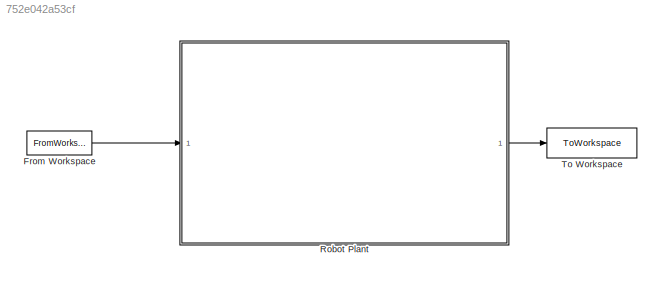
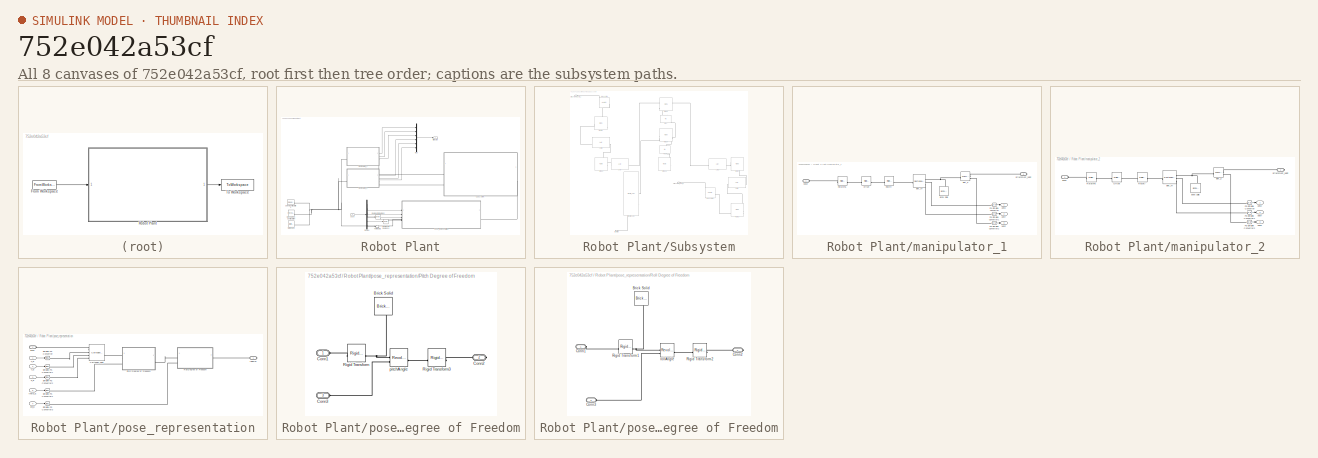
[diagram: thumbnail index - all 8 canvases of the model, root first then tree order]
MODEL slx_752e042a53cf
KIND model
CONFIG AbsTol = auto
CONFIG EnableMultiTasking = off
CONFIG FixedStep = 1e-4
CONFIG MaxStep = auto
CONFIG MinStep = auto
CONFIG RelTol = 1e-3
CONFIG SampleTimeConstraint = Unconstrained
CONFIG SolverName = VariableStepAuto
CONFIG StartTime = 0.0
CONFIG StopTime = 10
BLOCK [FromWorkspace] From Workspace
  VariableName = pose
BLOCK [SubSystem] Robot Plant
  TreatAsAtomicUnit = on
BLOCK [Reference] Robot Plant/Degrees to Radians  REF=simulink_extras/Transformations/Degrees to
Radians
  SourceBlock = simulink_extras/Transformations/Degrees to\nRadians
  SourceType = DegreesToRadians
BLOCK [Reference] Robot Plant/Degrees to Radians1  REF=simulink_extras/Transformations/Degrees to
Radians
  SourceBlock = simulink_extras/Transformations/Degrees to\nRadians
  SourceType = DegreesToRadians
BLOCK [Demux] Robot Plant/Demux
  Outputs = 6
BLOCK [Reference] Robot Plant/Mechanism Configuration  REF=sm_lib/Utilities/Mechanism
Configuration
  SourceBlock = sm_lib/Utilities/Mechanism\nConfiguration
  SourceType = Mechanism\nConfiguration
BLOCK [Mux] Robot Plant/Mux
  DisplayOption = bar
  Inputs = 6
BLOCK [Reference] Robot Plant/Solver Configuration  REF=nesl_utility/Solver
Configuration
  SourceBlock = nesl_utility/Solver\nConfiguration
  SourceType = Solver\nConfiguration
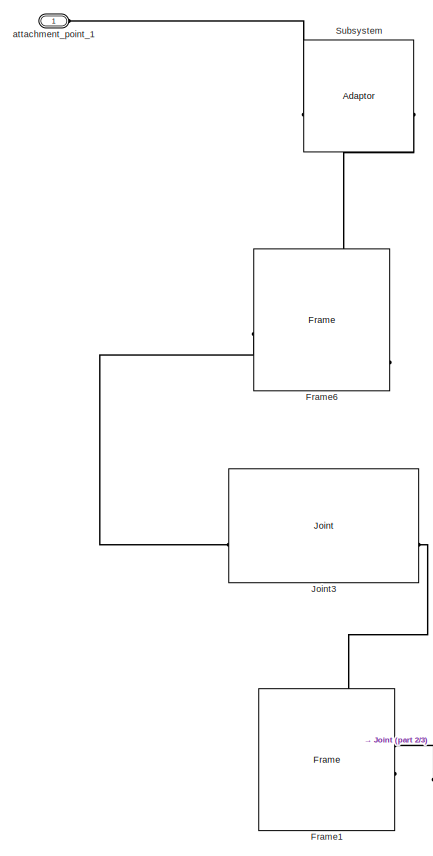
[diagram: Robot Plant/Subsystem - part 1/3, top left region]
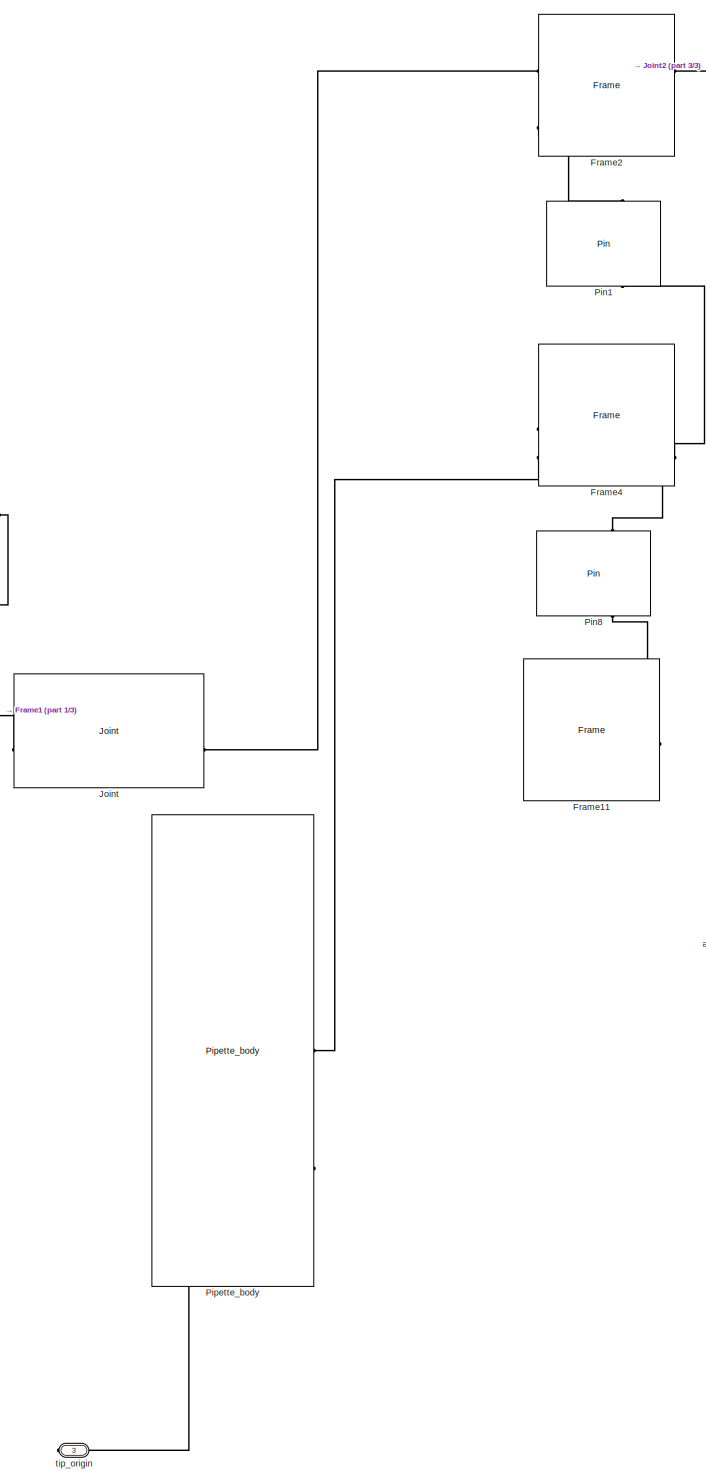
[diagram: Robot Plant/Subsystem - part 2/3, center side, full height]
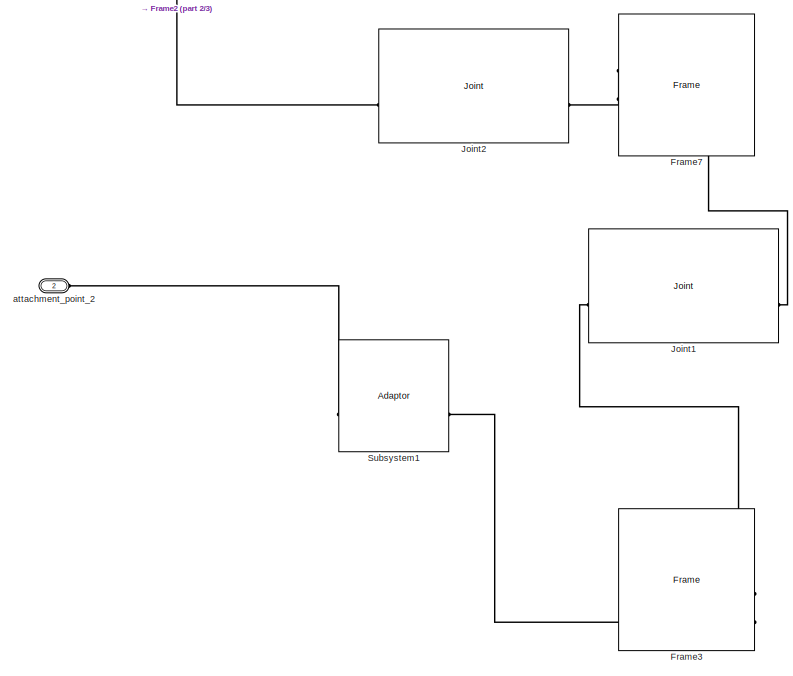
[diagram: Robot Plant/Subsystem - part 3/3, bottom right region]
BLOCK [SubSystem] Robot Plant/Subsystem
BLOCK [Reference] Robot Plant/Subsystem/Frame1  REF=mrex_hypercube_modules/Frame  (lib defined in slx_b86d9e98f719)
  SourceBlock = mrex_hypercube_modules/Frame
BLOCK [Reference] Robot Plant/Subsystem/Frame11  REF=mrex_hypercube_modules/Frame  (lib defined in slx_b86d9e98f719)
  SourceBlock = mrex_hypercube_modules/Frame
BLOCK [Reference] Robot Plant/Subsystem/Frame2  REF=mrex_hypercube_modules/Frame  (lib defined in slx_b86d9e98f719)
  SourceBlock = mrex_hypercube_modules/Frame
BLOCK [Reference] Robot Plant/Subsystem/Frame3  REF=mrex_hypercube_modules/Frame  (lib defined in slx_b86d9e98f719)
  SourceBlock = mrex_hypercube_modules/Frame
BLOCK [Reference] Robot Plant/Subsystem/Frame4  REF=mrex_hypercube_modules/Frame  (lib defined in slx_b86d9e98f719)
  SourceBlock = mrex_hypercube_modules/Frame
BLOCK [Reference] Robot Plant/Subsystem/Frame6  REF=mrex_hypercube_modules/Frame  (lib defined in slx_b86d9e98f719)
  SourceBlock = mrex_hypercube_modules/Frame
BLOCK [Reference] Robot Plant/Subsystem/Frame7  REF=mrex_hypercube_modules/Frame  (lib defined in slx_b86d9e98f719)
  SourceBlock = mrex_hypercube_modules/Frame
BLOCK [Reference] Robot Plant/Subsystem/Joint  REF=mrex_hypercube_modules/Joint  (lib defined in slx_b86d9e98f719)
  SourceBlock = mrex_hypercube_modules/Joint
BLOCK [Reference] Robot Plant/Subsystem/Joint1  REF=mrex_hypercube_modules/Joint  (lib defined in slx_b86d9e98f719)
  SourceBlock = mrex_hypercube_modules/Joint
BLOCK [Reference] Robot Plant/Subsystem/Joint2  REF=mrex_hypercube_modules/Joint  (lib defined in slx_b86d9e98f719)
  SourceBlock = mrex_hypercube_modules/Joint
BLOCK [Reference] Robot Plant/Subsystem/Joint3  REF=mrex_hypercube_modules/Joint  (lib defined in slx_b86d9e98f719)
  SourceBlock = mrex_hypercube_modules/Joint
BLOCK [Reference] Robot Plant/Subsystem/Pin1  REF=mrex_hypercube_modules/Pin  (lib defined in slx_b86d9e98f719)
  NameLocation = right
  SourceBlock = mrex_hypercube_modules/Pin
BLOCK [Reference] Robot Plant/Subsystem/Pin8  REF=mrex_hypercube_modules/Pin  (lib defined in slx_b86d9e98f719)
  NameLocation = right
  SourceBlock = mrex_hypercube_modules/Pin
BLOCK [Reference] Robot Plant/Subsystem/Pipette_body  REF=mrex_hypercube_modules/Pipette_body  (lib defined in slx_b86d9e98f719)
  SourceBlock = mrex_hypercube_modules/Pipette_body
BLOCK [Reference] Robot Plant/Subsystem/Subsystem  REF=mrex_hypercube_modules/Adaptor  (lib defined in slx_b86d9e98f719)
  SourceBlock = mrex_hypercube_modules/Adaptor
  SourceType = SubSystem
BLOCK [Reference] Robot Plant/Subsystem/Subsystem1  REF=mrex_hypercube_modules/Adaptor  (lib defined in slx_b86d9e98f719)
  SourceBlock = mrex_hypercube_modules/Adaptor
  SourceType = SubSystem
BLOCK [PMIOPort] Robot Plant/Subsystem/attachment_point_1
  Side = Left
BLOCK [PMIOPort] Robot Plant/Subsystem/attachment_point_2
  Port = 2
  Side = Left
BLOCK [PMIOPort] Robot Plant/Subsystem/tip_origin
  Port = 3
  Side = Right
BLOCK [Terminator] Robot Plant/Terminator1
BLOCK [Reference] Robot Plant/World Frame  REF=sm_lib/Frames and
Transforms/World Frame
  SourceBlock = sm_lib/Frames and\nTransforms/World Frame
  SourceType = World Frame
BLOCK [SubSystem] Robot Plant/manipulator_1
BLOCK [Reference] Robot Plant/manipulator_1/Brick Solid  REF=sm_lib/Body Elements/Brick Solid
  NameLocation = right
  SourceBlock = sm_lib/Body Elements/Brick Solid
  SourceType = Brick Solid
BLOCK [Reference] Robot Plant/manipulator_1/PS-Simulink Converter  REF=nesl_utility/PS-Simulink
Converter
  SourceBlock = nesl_utility/PS-Simulink\nConverter
  SourceType = PS-Simulink\nConverter
BLOCK [Reference] Robot Plant/manipulator_1/PS-Simulink Converter1  REF=nesl_utility/PS-Simulink
Converter
  SourceBlock = nesl_utility/PS-Simulink\nConverter
  SourceType = PS-Simulink\nConverter
BLOCK [Reference] Robot Plant/manipulator_1/PS-Simulink Converter2  REF=nesl_utility/PS-Simulink
Converter
  SourceBlock = nesl_utility/PS-Simulink\nConverter
  SourceType = PS-Simulink\nConverter
BLOCK [Reference] Robot Plant/manipulator_1/Rectify  REF=sm_lib/Frames and
Transforms/Rigid
Transform
  SourceBlock = sm_lib/Frames and\nTransforms/Rigid\nTransform
  SourceType = Rigid\nTransform
BLOCK [Reference] Robot Plant/manipulator_1/Rotate45  REF=sm_lib/Frames and
Transforms/Rigid
Transform
  SourceBlock = sm_lib/Frames and\nTransforms/Rigid\nTransform
  SourceType = Rigid\nTransform
BLOCK [PMIOPort] Robot Plant/manipulator_1/attachment_point
  Port = 2
  Side = Right
BLOCK [Outport] Robot Plant/manipulator_1/axisX
BLOCK [Outport] Robot Plant/manipulator_1/axisY
  Port = 2
BLOCK [Outport] Robot Plant/manipulator_1/axisZ
  Port = 3
BLOCK [PMIOPort] Robot Plant/manipulator_1/base
  Side = Left
BLOCK [Reference] Robot Plant/manipulator_1/joint_XY  REF=sm_lib/Joints/Rectangular
Joint
  SourceBlock = sm_lib/Joints/Rectangular\nJoint
  SourceType = Rectangular\nJoint
BLOCK [Reference] Robot Plant/manipulator_1/joint_Z  REF=sm_lib/Joints/Prismatic
Joint
  SourceBlock = sm_lib/Joints/Prismatic\nJoint
  SourceType = Prismatic\nJoint
BLOCK [Reference] Robot Plant/manipulator_1/offset  REF=sm_lib/Frames and
Transforms/Rigid
Transform
  SourceBlock = sm_lib/Frames and\nTransforms/Rigid\nTransform
  SourceType = Rigid\nTransform
BLOCK [SubSystem] Robot Plant/manipulator_2
BLOCK [Reference] Robot Plant/manipulator_2/Brick Solid  REF=sm_lib/Body Elements/Brick Solid
  NameLocation = right
  SourceBlock = sm_lib/Body Elements/Brick Solid
  SourceType = Brick Solid
BLOCK [Reference] Robot Plant/manipulator_2/Offset  REF=sm_lib/Frames and
Transforms/Rigid
Transform
  SourceBlock = sm_lib/Frames and\nTransforms/Rigid\nTransform
  SourceType = Rigid\nTransform
BLOCK [Reference] Robot Plant/manipulator_2/PS-Simulink Converter  REF=nesl_utility/PS-Simulink
Converter
  SourceBlock = nesl_utility/PS-Simulink\nConverter
  SourceType = PS-Simulink\nConverter
BLOCK [Reference] Robot Plant/manipulator_2/PS-Simulink Converter1  REF=nesl_utility/PS-Simulink
Converter
  SourceBlock = nesl_utility/PS-Simulink\nConverter
  SourceType = PS-Simulink\nConverter
BLOCK [Reference] Robot Plant/manipulator_2/PS-Simulink Converter2  REF=nesl_utility/PS-Simulink
Converter
  SourceBlock = nesl_utility/PS-Simulink\nConverter
  SourceType = PS-Simulink\nConverter
BLOCK [Reference] Robot Plant/manipulator_2/Rectify  REF=sm_lib/Frames and
Transforms/Rigid
Transform
  SourceBlock = sm_lib/Frames and\nTransforms/Rigid\nTransform
  SourceType = Rigid\nTransform
BLOCK [Reference] Robot Plant/manipulator_2/Rotate45  REF=sm_lib/Frames and
Transforms/Rigid
Transform
  SourceBlock = sm_lib/Frames and\nTransforms/Rigid\nTransform
  SourceType = Rigid\nTransform
BLOCK [PMIOPort] Robot Plant/manipulator_2/attachment_point
  Port = 2
  Side = Right
BLOCK [Outport] Robot Plant/manipulator_2/axisX
BLOCK [Outport] Robot Plant/manipulator_2/axisY
  Port = 2
BLOCK [Outport] Robot Plant/manipulator_2/axisZ
  Port = 3
BLOCK [PMIOPort] Robot Plant/manipulator_2/base
  Side = Left
BLOCK [Reference] Robot Plant/manipulator_2/joint_XY  REF=sm_lib/Joints/Rectangular
Joint
  SourceBlock = sm_lib/Joints/Rectangular\nJoint
  SourceType = Rectangular\nJoint
BLOCK [Reference] Robot Plant/manipulator_2/joint_Z  REF=sm_lib/Joints/Prismatic
Joint
  SourceBlock = sm_lib/Joints/Prismatic\nJoint
  SourceType = Prismatic\nJoint
BLOCK [Inport] Robot Plant/pose
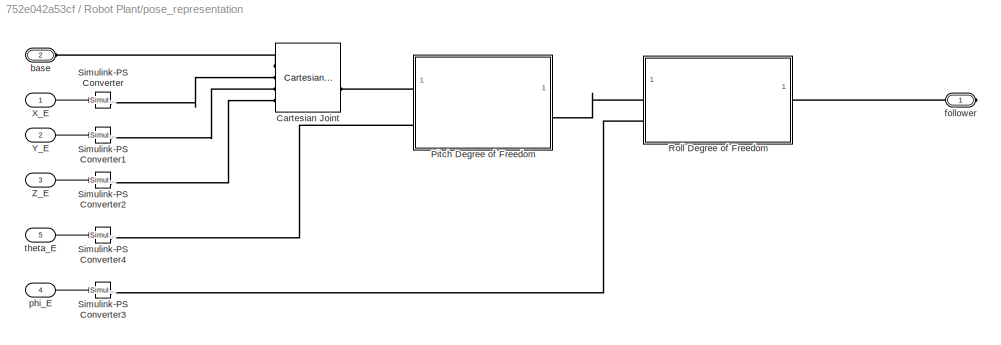
BLOCK [SubSystem] Robot Plant/pose_representation
BLOCK [Reference] Robot Plant/pose_representation/Cartesian Joint  REF=sm_lib/Joints/Cartesian
Joint
  SourceBlock = sm_lib/Joints/Cartesian\nJoint
  SourceType = Cartesian\nJoint
BLOCK [SubSystem] Robot Plant/pose_representation/Pitch Degree of Freedom
BLOCK [Reference] Robot Plant/pose_representation/Pitch Degree of Freedom/Brick Solid  REF=sm_lib/Body Elements/Brick Solid
  NameLocation = left
  SourceBlock = sm_lib/Body Elements/Brick Solid
  SourceType = Brick Solid
BLOCK [PMIOPort] Robot Plant/pose_representation/Pitch Degree of Freedom/Conn1
  Side = Left
BLOCK [PMIOPort] Robot Plant/pose_representation/Pitch Degree of Freedom/Conn2
  Port = 2
  Side = Right
BLOCK [PMIOPort] Robot Plant/pose_representation/Pitch Degree of Freedom/Conn3
  Port = 3
  Side = Left
BLOCK [Reference] Robot Plant/pose_representation/Pitch Degree of Freedom/Rigid Transform  REF=sm_lib/Frames and
Transforms/Rigid
Transform
  SourceBlock = sm_lib/Frames and\nTransforms/Rigid\nTransform
  SourceType = Rigid\nTransform
BLOCK [Reference] Robot Plant/pose_representation/Pitch Degree of Freedom/Rigid Transform3  REF=sm_lib/Frames and
Transforms/Rigid
Transform
  SourceBlock = sm_lib/Frames and\nTransforms/Rigid\nTransform
  SourceType = Rigid\nTransform
BLOCK [Reference] Robot Plant/pose_representation/Pitch Degree of Freedom/pitchAngle  REF=sm_lib/Joints/Revolute Joint
  SourceBlock = sm_lib/Joints/Revolute Joint
  SourceType = Revolute Joint
BLOCK [SubSystem] Robot Plant/pose_representation/Roll Degree of Freedom
BLOCK [Reference] Robot Plant/pose_representation/Roll Degree of Freedom/Brick Solid  REF=sm_lib/Body Elements/Brick Solid
  NameLocation = left
  SourceBlock = sm_lib/Body Elements/Brick Solid
  SourceType = Brick Solid
BLOCK [PMIOPort] Robot Plant/pose_representation/Roll Degree of Freedom/Conn1
  Side = Left
BLOCK [PMIOPort] Robot Plant/pose_representation/Roll Degree of Freedom/Conn2
  Port = 2
  Side = Right
BLOCK [PMIOPort] Robot Plant/pose_representation/Roll Degree of Freedom/Conn3
  Port = 3
  Side = Left
BLOCK [Reference] Robot Plant/pose_representation/Roll Degree of Freedom/Rigid Transform1  REF=sm_lib/Frames and
Transforms/Rigid
Transform
  SourceBlock = sm_lib/Frames and\nTransforms/Rigid\nTransform
  SourceType = Rigid\nTransform
BLOCK [Reference] Robot Plant/pose_representation/Roll Degree of Freedom/Rigid Transform2  REF=sm_lib/Frames and
Transforms/Rigid
Transform
  SourceBlock = sm_lib/Frames and\nTransforms/Rigid\nTransform
  SourceType = Rigid\nTransform
BLOCK [Reference] Robot Plant/pose_representation/Roll Degree of Freedom/rollAngle  REF=sm_lib/Joints/Revolute Joint
  SourceBlock = sm_lib/Joints/Revolute Joint
  SourceType = Revolute Joint
BLOCK [Reference] Robot Plant/pose_representation/Simulink-PS Converter  REF=nesl_utility/Simulink-PS
Converter
  SourceBlock = nesl_utility/Simulink-PS\nConverter
  SourceType = Simulink-PS\nConverter
BLOCK [Reference] Robot Plant/pose_representation/Simulink-PS Converter1  REF=nesl_utility/Simulink-PS
Converter
  SourceBlock = nesl_utility/Simulink-PS\nConverter
  SourceType = Simulink-PS\nConverter
BLOCK [Reference] Robot Plant/pose_representation/Simulink-PS Converter2  REF=nesl_utility/Simulink-PS
Converter
  SourceBlock = nesl_utility/Simulink-PS\nConverter
  SourceType = Simulink-PS\nConverter
BLOCK [Reference] Robot Plant/pose_representation/Simulink-PS Converter3  REF=nesl_utility/Simulink-PS
Converter
  SourceBlock = nesl_utility/Simulink-PS\nConverter
  SourceType = Simulink-PS\nConverter
BLOCK [Reference] Robot Plant/pose_representation/Simulink-PS Converter4  REF=nesl_utility/Simulink-PS
Converter
  SourceBlock = nesl_utility/Simulink-PS\nConverter
  SourceType = Simulink-PS\nConverter
BLOCK [Inport] Robot Plant/pose_representation/X_E
BLOCK [Inport] Robot Plant/pose_representation/Y_E
  Port = 2
BLOCK [Inport] Robot Plant/pose_representation/Z_E
  Port = 3
BLOCK [PMIOPort] Robot Plant/pose_representation/base
  Port = 2
  Side = Left
BLOCK [PMIOPort] Robot Plant/pose_representation/follower
  Side = Right
BLOCK [Inport] Robot Plant/pose_representation/phi_E
  Port = 4
BLOCK [Inport] Robot Plant/pose_representation/theta_E
  Port = 5
BLOCK [Outport] Robot Plant/trajectory
BLOCK [ToWorkspace] To Workspace
  FixptAsFi = on
  MaxDataPoints = inf
  SampleTime = -1
  SaveFormat = Timeseries
  VariableName = q
LINE From Workspace:1 -> Robot Plant:1
LINE Robot Plant/Degrees to Radians1:1 -> Robot Plant/pose_representation:5
LINE Robot Plant/Degrees to Radians:1 -> Robot Plant/pose_representation:4
LINE Robot Plant/Demux:1 -> Robot Plant/pose_representation:1
LINE Robot Plant/Demux:2 -> Robot Plant/pose_representation:2
LINE Robot Plant/Demux:3 -> Robot Plant/pose_representation:3
LINE Robot Plant/Demux:4 -> Robot Plant/Degrees to Radians:1
LINE Robot Plant/Demux:5 -> Robot Plant/Degrees to Radians1:1
LINE Robot Plant/Demux:6 -> Robot Plant/Terminator1:1
LINE Robot Plant/Mux:1 -> Robot Plant/trajectory:1
LINE Robot Plant/manipulator_1/PS-Simulink Converter1:1 -> Robot Plant/manipulator_1/axisY:1
LINE Robot Plant/manipulator_1/PS-Simulink Converter2:1 -> Robot Plant/manipulator_1/axisZ:1
LINE Robot Plant/manipulator_1/PS-Simulink Converter:1 -> Robot Plant/manipulator_1/axisX:1
LINE Robot Plant/manipulator_1:1 -> Robot Plant/Mux:1
LINE Robot Plant/manipulator_1:2 -> Robot Plant/Mux:2
LINE Robot Plant/manipulator_1:3 -> Robot Plant/Mux:3
LINE Robot Plant/manipulator_2/PS-Simulink Converter1:1 -> Robot Plant/manipulator_2/axisY:1
LINE Robot Plant/manipulator_2/PS-Simulink Converter2:1 -> Robot Plant/manipulator_2/axisZ:1
LINE Robot Plant/manipulator_2/PS-Simulink Converter:1 -> Robot Plant/manipulator_2/axisX:1
LINE Robot Plant/manipulator_2:1 -> Robot Plant/Mux:4
LINE Robot Plant/manipulator_2:2 -> Robot Plant/Mux:5
LINE Robot Plant/manipulator_2:3 -> Robot Plant/Mux:6
LINE Robot Plant/pose:1 -> Robot Plant/Demux:1
LINE Robot Plant/pose_representation/X_E:1 -> Robot Plant/pose_representation/Simulink-PS Converter:1
LINE Robot Plant/pose_representation/Y_E:1 -> Robot Plant/pose_representation/Simulink-PS Converter1:1
LINE Robot Plant/pose_representation/Z_E:1 -> Robot Plant/pose_representation/Simulink-PS Converter2:1
LINE Robot Plant/pose_representation/phi_E:1 -> Robot Plant/pose_representation/Simulink-PS Converter3:1
LINE Robot Plant/pose_representation/theta_E:1 -> Robot Plant/pose_representation/Simulink-PS Converter4:1
LINE Robot Plant:1 -> To Workspace:1
PNET net1: Robot Plant/Mechanism Configuration:RConn1 -- Robot Plant/Solver Configuration:RConn1 -- Robot Plant/World Frame:RConn1 -- Robot Plant/manipulator_1:LConn1 -- Robot Plant/manipulator_2:LConn1 -- Robot Plant/pose_representation:LConn1
PLINE Robot Plant/Subsystem/Frame11:LConn2 -- Robot Plant/Subsystem/Pin8:LConn1
PLINE Robot Plant/Subsystem/Frame1:LConn1 -- Robot Plant/Subsystem/Joint:LConn1
PLINE Robot Plant/Subsystem/Frame1:LConn2 -- Robot Plant/Subsystem/Joint3:RConn1
PLINE Robot Plant/Subsystem/Frame2:LConn1 -- Robot Plant/Subsystem/Joint2:LConn1
PLINE Robot Plant/Subsystem/Frame2:RConn1 -- Robot Plant/Subsystem/Joint:RConn1
PLINE Robot Plant/Subsystem/Frame2:RConn3 -- Robot Plant/Subsystem/Pin1:RConn1
PLINE Robot Plant/Subsystem/Frame3:LConn2 -- Robot Plant/Subsystem/Joint1:LConn1
PLINE Robot Plant/Subsystem/Frame3:LConn3 -- Robot Plant/Subsystem/Subsystem1:RConn1
PLINE Robot Plant/Subsystem/Frame4:LConn3 -- Robot Plant/Subsystem/Pin1:LConn1
PLINE Robot Plant/Subsystem/Frame4:RConn2 -- Robot Plant/Subsystem/Pin8:RConn1
PLINE Robot Plant/Subsystem/Frame4:RConn3 -- Robot Plant/Subsystem/Pipette_body:RConn1
PLINE Robot Plant/Subsystem/Frame6:LConn3 -- Robot Plant/Subsystem/Subsystem:RConn1
PLINE Robot Plant/Subsystem/Frame6:RConn2 -- Robot Plant/Subsystem/Joint3:LConn1
PLINE Robot Plant/Subsystem/Frame7:RConn1 -- Robot Plant/Subsystem/Joint2:RConn1
PLINE Robot Plant/Subsystem/Frame7:RConn2 -- Robot Plant/Subsystem/Joint1:RConn1
PLINE Robot Plant/Subsystem/Pipette_body:RConn2 -- Robot Plant/Subsystem/tip_origin:RConn1
PLINE Robot Plant/Subsystem/Subsystem1:LConn1 -- Robot Plant/Subsystem/attachment_point_2:RConn1
PLINE Robot Plant/Subsystem/Subsystem:LConn1 -- Robot Plant/Subsystem/attachment_point_1:RConn1
PLINE Robot Plant/Subsystem:LConn1 -- Robot Plant/manipulator_1:RConn1
PLINE Robot Plant/Subsystem:LConn2 -- Robot Plant/manipulator_2:RConn1
PLINE Robot Plant/Subsystem:RConn1 -- Robot Plant/pose_representation:RConn1
PNET net2: Robot Plant/manipulator_1/Brick Solid:RConn1 -- Robot Plant/manipulator_1/joint_XY:RConn1 -- Robot Plant/manipulator_1/joint_Z:LConn1
PLINE Robot Plant/manipulator_1/PS-Simulink Converter1:LConn1 -- Robot Plant/manipulator_1/joint_XY:RConn3
PLINE Robot Plant/manipulator_1/PS-Simulink Converter2:LConn1 -- Robot Plant/manipulator_1/joint_Z:RConn2
PLINE Robot Plant/manipulator_1/PS-Simulink Converter:LConn1 -- Robot Plant/manipulator_1/joint_XY:RConn2
PLINE Robot Plant/manipulator_1/Rectify:LConn1 -- Robot Plant/manipulator_1/offset:RConn1
PLINE Robot Plant/manipulator_1/Rectify:RConn1 -- Robot Plant/manipulator_1/joint_XY:LConn1
PLINE Robot Plant/manipulator_1/Rotate45:LConn1 -- Robot Plant/manipulator_1/base:RConn1
PLINE Robot Plant/manipulator_1/Rotate45:RConn1 -- Robot Plant/manipulator_1/offset:LConn1
PLINE Robot Plant/manipulator_1/attachment_point:RConn1 -- Robot Plant/manipulator_1/joint_Z:RConn1
PNET net3: Robot Plant/manipulator_2/Brick Solid:RConn1 -- Robot Plant/manipulator_2/joint_XY:RConn1 -- Robot Plant/manipulator_2/joint_Z:LConn1
PLINE Robot Plant/manipulator_2/Offset:LConn1 -- Robot Plant/manipulator_2/Rotate45:RConn1
PLINE Robot Plant/manipulator_2/Offset:RConn1 -- Robot Plant/manipulator_2/Rectify:LConn1
PLINE Robot Plant/manipulator_2/PS-Simulink Converter1:LConn1 -- Robot Plant/manipulator_2/joint_XY:RConn3
PLINE Robot Plant/manipulator_2/PS-Simulink Converter2:LConn1 -- Robot Plant/manipulator_2/joint_Z:RConn2
PLINE Robot Plant/manipulator_2/PS-Simulink Converter:LConn1 -- Robot Plant/manipulator_2/joint_XY:RConn2
PLINE Robot Plant/manipulator_2/Rectify:RConn1 -- Robot Plant/manipulator_2/joint_XY:LConn1
PLINE Robot Plant/manipulator_2/Rotate45:LConn1 -- Robot Plant/manipulator_2/base:RConn1
PLINE Robot Plant/manipulator_2/attachment_point:RConn1 -- Robot Plant/manipulator_2/joint_Z:RConn1
PLINE Robot Plant/pose_representation/Cartesian Joint:LConn1 -- Robot Plant/pose_representation/base:RConn1
PLINE Robot Plant/pose_representation/Cartesian Joint:LConn2 -- Robot Plant/pose_representation/Simulink-PS Converter:RConn1
PLINE Robot Plant/pose_representation/Cartesian Joint:LConn3 -- Robot Plant/pose_representation/Simulink-PS Converter1:RConn1
PLINE Robot Plant/pose_representation/Cartesian Joint:LConn4 -- Robot Plant/pose_representation/Simulink-PS Converter2:RConn1
PLINE Robot Plant/pose_representation/Cartesian Joint:RConn1 -- Robot Plant/pose_representation/Pitch Degree of Freedom:LConn1
PNET net4: Robot Plant/pose_representation/Pitch Degree of Freedom/Brick Solid:RConn1 -- Robot Plant/pose_representation/Pitch Degree of Freedom/Rigid Transform:RConn1 -- Robot Plant/pose_representation/Pitch Degree of Freedom/pitchAngle:LConn1
PLINE Robot Plant/pose_representation/Pitch Degree of Freedom/Conn1:RConn1 -- Robot Plant/pose_representation/Pitch Degree of Freedom/Rigid Transform:LConn1
PLINE Robot Plant/pose_representation/Pitch Degree of Freedom/Conn2:RConn1 -- Robot Plant/pose_representation/Pitch Degree of Freedom/Rigid Transform3:LConn1
PLINE Robot Plant/pose_representation/Pitch Degree of Freedom/Conn3:RConn1 -- Robot Plant/pose_representation/Pitch Degree of Freedom/pitchAngle:LConn2
PLINE Robot Plant/pose_representation/Pitch Degree of Freedom/Rigid Transform3:RConn1 -- Robot Plant/pose_representation/Pitch Degree of Freedom/pitchAngle:RConn1
PLINE Robot Plant/pose_representation/Pitch Degree of Freedom:LConn2 -- Robot Plant/pose_representation/Simulink-PS Converter4:RConn1
PLINE Robot Plant/pose_representation/Pitch Degree of Freedom:RConn1 -- Robot Plant/pose_representation/Roll Degree of Freedom:LConn1
PNET net5: Robot Plant/pose_representation/Roll Degree of Freedom/Brick Solid:RConn1 -- Robot Plant/pose_representation/Roll Degree of Freedom/Rigid Transform1:RConn1 -- Robot Plant/pose_representation/Roll Degree of Freedom/rollAngle:LConn1
PLINE Robot Plant/pose_representation/Roll Degree of Freedom/Conn1:RConn1 -- Robot Plant/pose_representation/Roll Degree of Freedom/Rigid Transform1:LConn1
PLINE Robot Plant/pose_representation/Roll Degree of Freedom/Conn2:RConn1 -- Robot Plant/pose_representation/Roll Degree of Freedom/Rigid Transform2:RConn1
PLINE Robot Plant/pose_representation/Roll Degree of Freedom/Conn3:RConn1 -- Robot Plant/pose_representation/Roll Degree of Freedom/rollAngle:LConn2
PLINE Robot Plant/pose_representation/Roll Degree of Freedom/Rigid Transform2:LConn1 -- Robot Plant/pose_representation/Roll Degree of Freedom/rollAngle:RConn1
PLINE Robot Plant/pose_representation/Roll Degree of Freedom:LConn2 -- Robot Plant/pose_representation/Simulink-PS Converter3:RConn1
PLINE Robot Plant/pose_representation/Roll Degree of Freedom:RConn1 -- Robot Plant/pose_representation/follower:RConn1
note: PNET lines group multi-terminal physical nets as a canonical sorted terminal list (undirected conserving connections); 2-terminal nets keep the pairwise PLINE form
